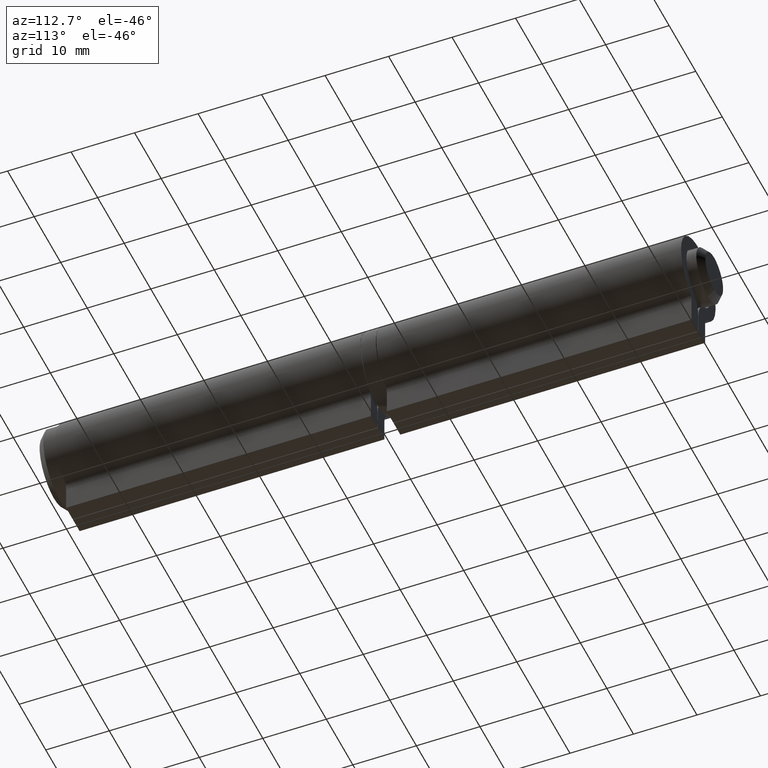
[diagram: clean part render]
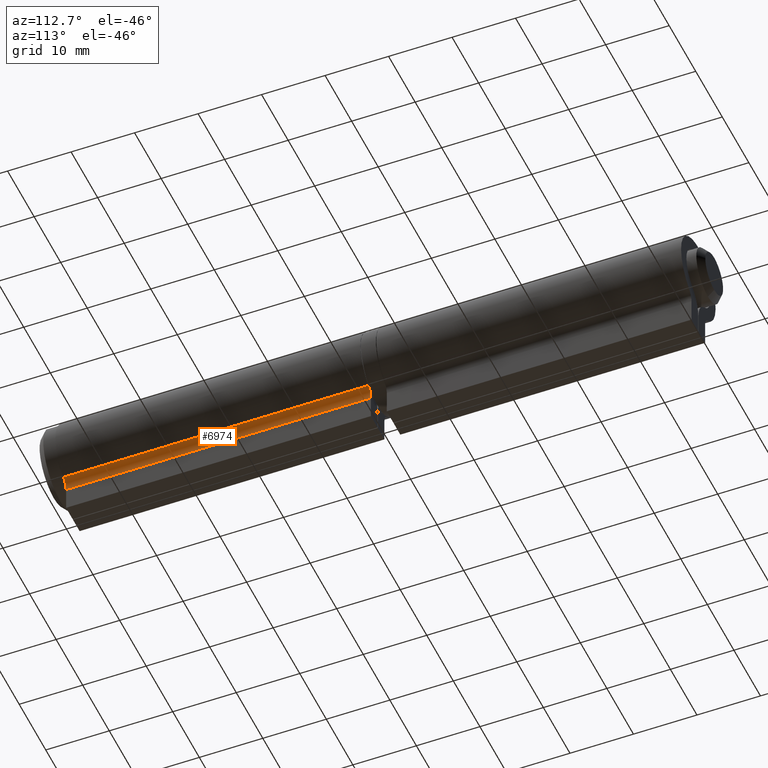
[diagram: same view with one face highlighted and labeled with its STEP entity id]
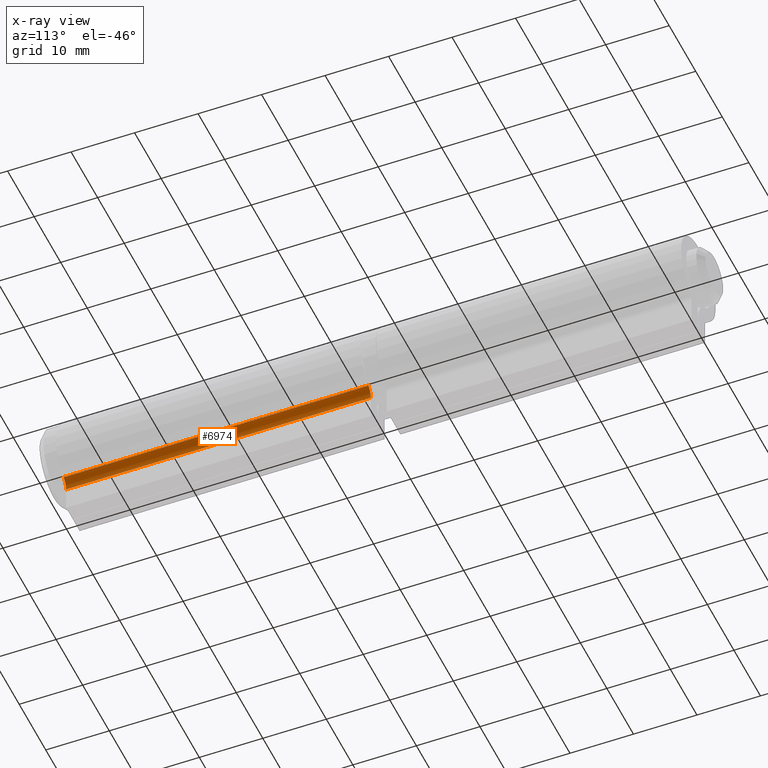
[diagram: x-ray of the same camera — body ghosted, the highlighted face saturated]
A machine part, auxiliary view. The second image highlights one B-rep face of the part: STEP entity #6974.
The next image is the same camera in x-ray: the body ghosted, the highlighted face saturated — about 0% of this face is hidden behind the body in this view.
In plain terms, the highlighted cylindrical surface (edge-blend (fillet) strip) has radius 2 mm, axis along (-0, -1, -0).
Its self-contained STEP definition (entity closure, byte-faithful):
#1069 = CARTESIAN_POINT ( 'NONE',  ( 3.479411764705883314, 24.00000000000000000, -5.490327291849392388 ) ) ;
#1162 = VERTEX_POINT ( 'NONE', #6976 ) ;
#1208 = DIRECTION ( 'NONE',  ( -0.000000000000000000, -1.000000000000000000, 0.000000000000000000 ) ) ;
#1547 = AXIS2_PLACEMENT_3D ( 'NONE', #7594, #1208, #6628 ) ;
#1647 = CIRCLE ( 'NONE', #8960, 2.000000000000000888 ) ;
#1729 = VERTEX_POINT ( 'NONE', #11933 ) ;
#2685 = DIRECTION ( 'NONE',  ( -0.000000000000000000, -1.000000000000000000, 0.000000000000000000 ) ) ;
#3259 = CIRCLE ( 'NONE', #1547, 2.000000000000000888 ) ;
#3721 = EDGE_CURVE ( 'NONE', #10682, #1162, #1647, .T. ) ;
#3884 = ORIENTED_EDGE ( 'NONE', *, *, #13356, .F. ) ;
#3999 = VECTOR ( 'NONE', #6039, 1000.000000000000000 ) ;
#4377 = CARTESIAN_POINT ( 'NONE',  ( 3.479411764705883314, 24.00000000000000000, -5.490327291849392388 ) ) ;
#4832 = LINE ( 'NONE', #9272, #3999 ) ;
#5148 = VECTOR ( 'NONE', #12069, 1000.000000000000000 ) ;
#5277 = VERTEX_POINT ( 'NONE', #1069 ) ;
#5986 = LINE ( 'NONE', #4377, #5148 ) ;
#6039 = DIRECTION ( 'NONE',  ( -0.000000000000000000, -1.000000000000000000, -0.000000000000000000 ) ) ;
#6144 = ORIENTED_EDGE ( 'NONE', *, *, #3721, .T. ) ;
#6357 = AXIS2_PLACEMENT_3D ( 'NONE', #6893, #12704, #7223 ) ;
#6545 = ORIENTED_EDGE ( 'NONE', *, *, #7543, .T. ) ;
#6628 = DIRECTION ( 'NONE',  ( 0.000000000000000000, 0.000000000000000000, -1.000000000000000000 ) ) ;
#6745 = ORIENTED_EDGE ( 'NONE', *, *, #10133, .F. ) ;
#6893 = CARTESIAN_POINT ( 'NONE',  ( 4.550000000000000711, 24.00000000000000000, -7.179658766264591208 ) ) ;
#6974 = ADVANCED_FACE ( 'NONE', ( #10872 ), #10031, .F. ) ;
#6976 = CARTESIAN_POINT ( 'NONE',  ( 2.550000000000000266, -24.00000000000000000, -7.179658766264591208 ) ) ;
#7223 = DIRECTION ( 'NONE',  ( 0.000000000000000000, 0.000000000000000000, -1.000000000000000000 ) ) ;
#7543 = EDGE_CURVE ( 'NONE', #5277, #10682, #5986, .T. ) ;
#7594 = CARTESIAN_POINT ( 'NONE',  ( 4.550000000000000711, 24.00000000000000000, -7.179658766264591208 ) ) ;
#8960 = AXIS2_PLACEMENT_3D ( 'NONE', #13709, #2685, #9235 ) ;
#9235 = DIRECTION ( 'NONE',  ( 0.000000000000000000, 0.000000000000000000, -1.000000000000000000 ) ) ;
#9272 = CARTESIAN_POINT ( 'NONE',  ( 2.550000000000000266, 24.00000000000000000, -7.179658766264591208 ) ) ;
#9652 = CARTESIAN_POINT ( 'NONE',  ( 3.479411764705883314, -24.00000000000000000, -5.490327291849392388 ) ) ;
#10031 = CYLINDRICAL_SURFACE ( 'NONE', #6357, 2.000000000000000888 ) ;
#10133 = EDGE_CURVE ( 'NONE', #1729, #1162, #4832, .T. ) ;
#10682 = VERTEX_POINT ( 'NONE', #9652 ) ;
#10872 = FACE_OUTER_BOUND ( 'NONE', #12853, .T. ) ;
#11933 = CARTESIAN_POINT ( 'NONE',  ( 2.550000000000000266, 24.00000000000000000, -7.179658766264591208 ) ) ;
#12069 = DIRECTION ( 'NONE',  ( -0.000000000000000000, -1.000000000000000000, -0.000000000000000000 ) ) ;
#12704 = DIRECTION ( 'NONE',  ( -0.000000000000000000, -1.000000000000000000, -0.000000000000000000 ) ) ;
#12853 = EDGE_LOOP ( 'NONE', ( #6144, #6745, #3884, #6545 ) ) ;
#13356 = EDGE_CURVE ( 'NONE', #5277, #1729, #3259, .T. ) ;
#13709 = CARTESIAN_POINT ( 'NONE',  ( 4.550000000000000711, -24.00000000000000000, -7.179658766264591208 ) ) ;